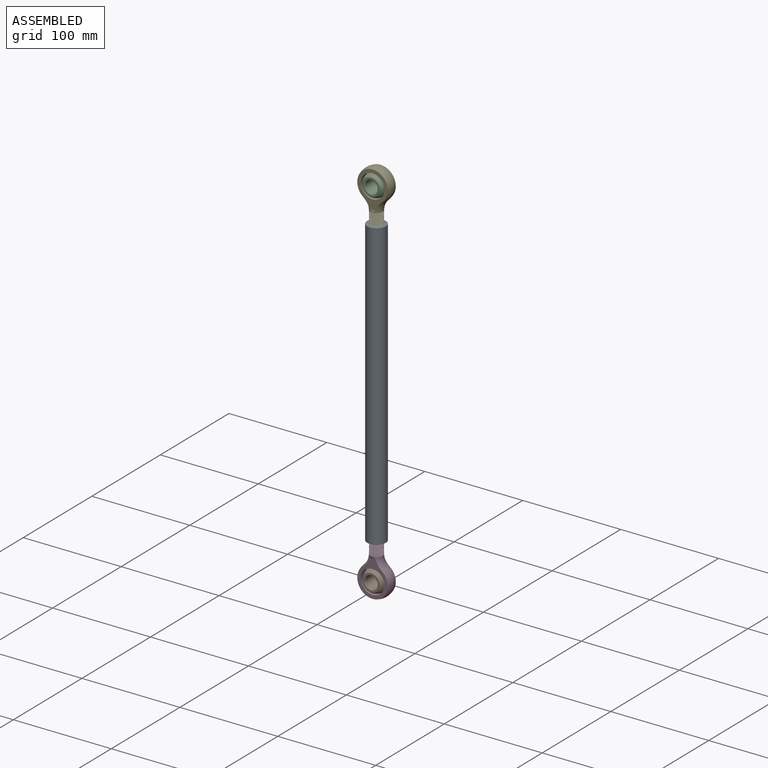
[diagram: assembled view]
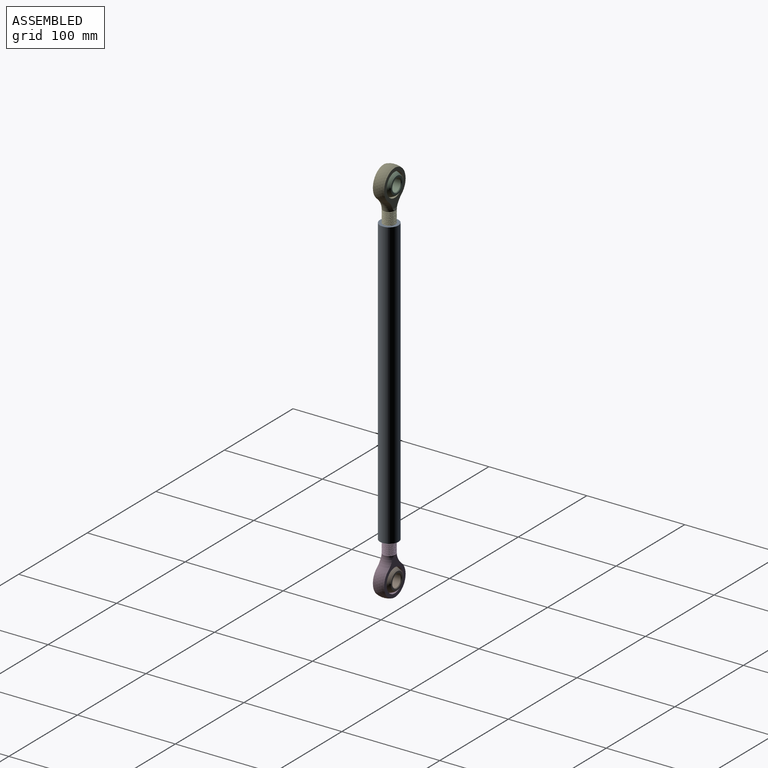
[diagram: assembled view, second angle]
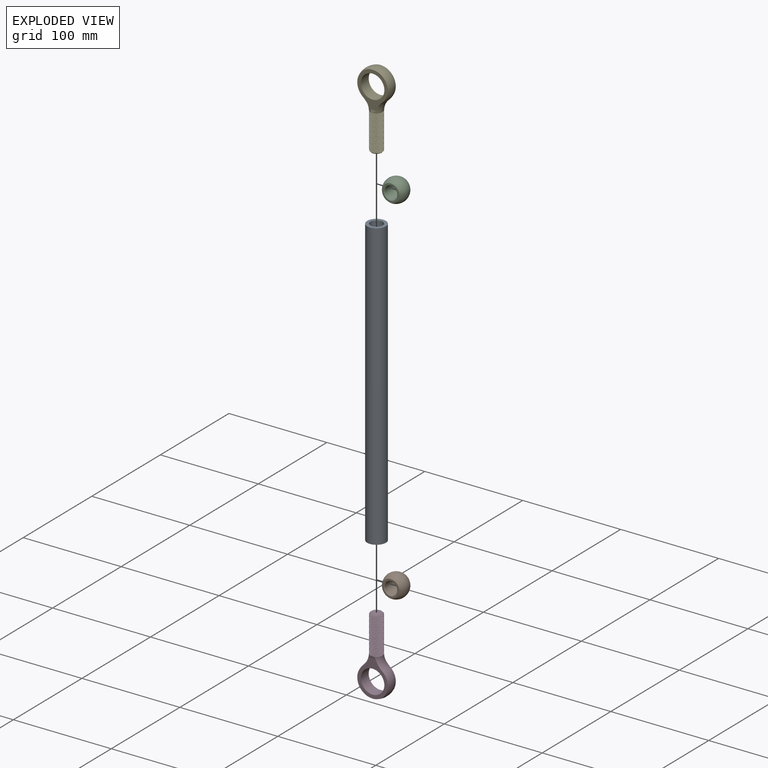
[diagram: exploded view]
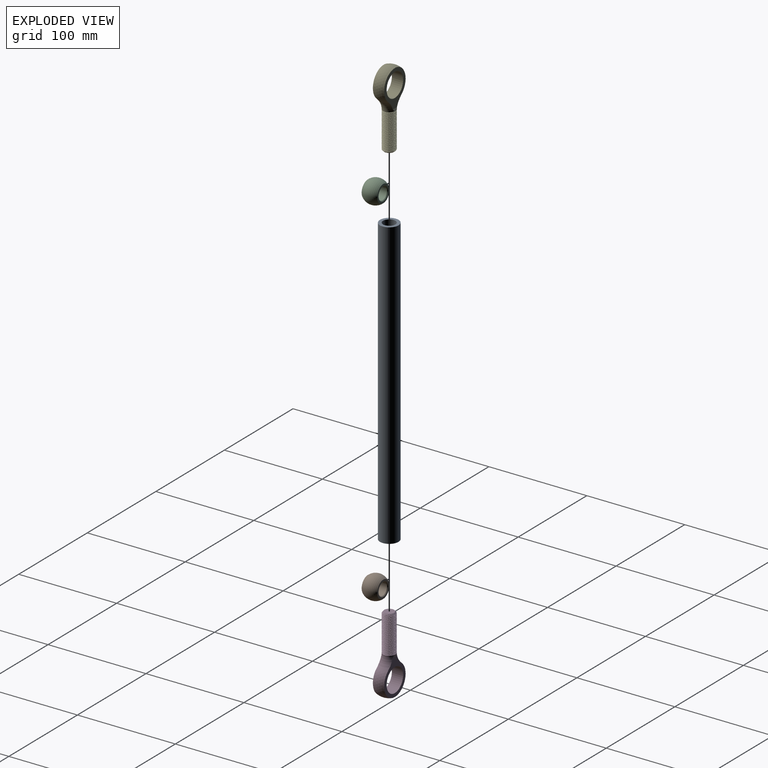
[diagram: exploded view, second angle]
ASSEMBLY  parts=5 mates=2
PART A: 4 faces, bbox 19.1x292.1x19.1 mm
  f0: cylinder r=6.35mm len=292.1mm, axis (0,1,0), area 11654.3mm2, adj f2,f3
  f1: cylinder r=9.53mm len=292.1mm, axis (0,1,0), area 17481.4mm2, adj f2,f3
  f2: plane 19.05x19.05mm, normal (0,-1,0), area 158.3mm2, adj f0,f1
  f3: plane 19.05x19.05mm, normal (0,1,0), area 158.3mm2, adj f0,f1
PART B: 6 faces, bbox 23.8x15.9x23.8 mm
  f0: cone r=6.35mm half-angle=45deg, axis (0,-1,0), area 37.6mm2, adj f2,f4
  f1: cone r=6.99mm half-angle=45deg, axis (0,1,0), area 37.6mm2, adj f2,f5
  f2: cylinder r=6.35mm len=14.61mm, axis (0,-1,0), area 582.7mm2, adj f0,f1
  f3: sphere r=11.91mm, area 1187.6mm2, adj f4,f5
  f4: plane 17.75x17.75mm, normal (0,-1,0), area 94.1mm2, adj f0,f3
  f5: plane 17.75x17.75mm, normal (0,1,0), area 94.1mm2, adj f1,f3
PART C: same geometry as B
PART D: 16 faces, bbox 49.1x49.1x80.1 mm
  f0: cylinder r=12.03mm len=24.05mm, axis (0,-1,0), area 869.6mm2, adj f12,f14
  f1: sphere r=16.67mm, area 944.4mm2, adj f2,f5,f12,f14
  f2: torus R=22.32mm, axis (0,0,-1), area 180.4mm2, adj f1,f3,f11,f12,f13,f14,f15
  f3: cylinder r=6.35mm len=36.83mm, axis (0,0,1), area 183.7mm2, adj f2,f4,f7,f10
  f4: cone r=6.35mm half-angle=45deg, axis (0,0,1), area 42.4mm2, adj f3,f6,f7,f8,f9,f10
  f5: torus R=22.32mm, axis (0,0,-1), area 180.4mm2, adj f1,f11,f12,f13,f14,f15
  f6: plane 10.16x10.16mm, normal (0,0,-1), area 81.1mm2, adj f4
  f7: bspline ~39.05x12.7mm, area 1047.9mm2, adj f3,f4,f9,f11
  f8: bspline ~11.29x10.76mm, area 7.1mm2, adj f4
  f9: cylinder r=5.53mm len=37.66mm, axis (0,0,1), area 165.1mm2, adj f4,f7,f10,f11
  f10: bspline ~38.42x12.7mm, area 1045.6mm2, adj f3,f4,f9,f11
  f11: plane 13.2x13.2mm, normal (0,0,-1), area 15.6mm2, adj f2,f5,f7,f9,f10
  f12: plane 37.68x31.81mm, normal (0,-1,0), area 376.1mm2, adj f0,f1,f2,f5,f13
  f13: plane 6.9x3.09mm, normal (0,-0.97,0.25), area 9.3mm2, adj f2,f5,f12
  f14: plane 37.68x31.81mm, normal (0,1,0), area 376.1mm2, adj f0,f1,f2,f5,f15
  f15: plane 6.9x3.09mm, normal (0,0.97,0.25), area 9.3mm2, adj f2,f5,f14
PART E: same geometry as D
PLACE A rot(axis=(1,0,0),90deg) t=(130.83,0,-202.04)mm
PLACE B rot(axis=(1,0,0),180deg) t=(130.83,0,-360.79)mm
PLACE C t=(130.83,0,-43.29)mm
PLACE D rot(axis=(1,0,0),180deg) t=(130.83,0,-360.79)mm
PLACE E t=(130.83,0,-43.29)mm
MATE fastened A.f0 <-> E.f9  axis (0,0,1) through (130.83,0,-55.99)mm
MATE fastened A.f0 <-> D.f9  axis (0,0,-1) through (130.83,0,-348.09)mm
